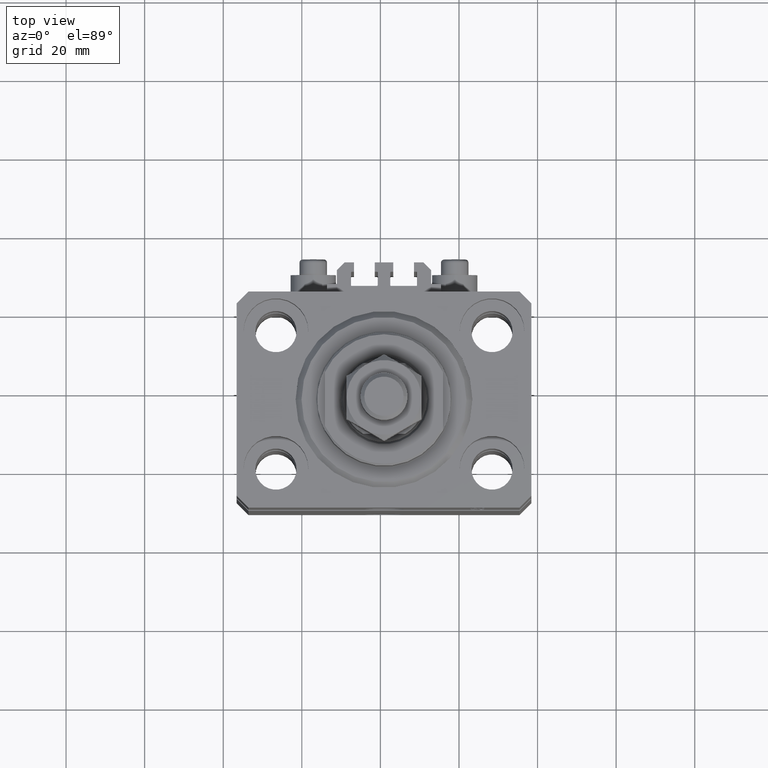
[diagram: clean part render]
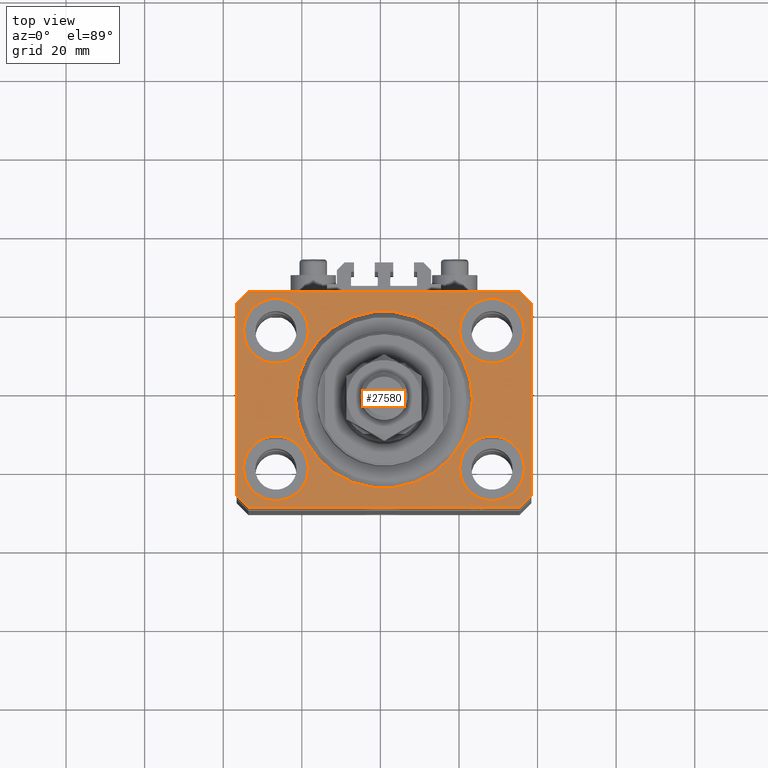
[diagram: same view with one face highlighted and labeled with its STEP entity id]
A machine part, top view. The second image highlights one B-rep face of the part: STEP entity #27580.
In plain terms, the highlighted planar face has unit normal (0, 0, 1).
Its self-contained STEP definition (entity closure, byte-faithful):
#201 = ORIENTED_EDGE ( 'NONE', *, *, #4937, .F. ) ;
#773 = DIRECTION ( 'NONE',  ( -1.000000000000000000, 0.000000000000000000, 0.000000000000000000 ) ) ;
#841 = DIRECTION ( 'NONE',  ( 0.000000000000000000, 0.000000000000000000, 1.000000000000000000 ) ) ;
#895 = DIRECTION ( 'NONE',  ( 1.000000000000000000, 0.000000000000000000, 0.000000000000000000 ) ) ;
#1076 = FACE_BOUND ( 'NONE', #31530, .T. ) ;
#1424 = VERTEX_POINT ( 'NONE', #47582 ) ;
#1511 = DIRECTION ( 'NONE',  ( 1.076236605503979380E-14, 1.000000000000000000, 0.000000000000000000 ) ) ;
#2161 = ORIENTED_EDGE ( 'NONE', *, *, #43534, .F. ) ;
#2322 = CARTESIAN_POINT ( 'NONE',  ( 27.49999999999999645, 17.50000000000001066, 0.000000000000000000 ) ) ;
#2441 = ORIENTED_EDGE ( 'NONE', *, *, #48425, .T. ) ;
#2782 = CIRCLE ( 'NONE', #3561, 8.250000000000000000 ) ;
#3008 = LINE ( 'NONE', #47786, #14439 ) ;
#3285 = CIRCLE ( 'NONE', #16562, 8.250000000000000000 ) ;
#3461 = LINE ( 'NONE', #45044, #37243 ) ;
#3561 = AXIS2_PLACEMENT_3D ( 'NONE', #36481, #32812, #47748 ) ;
#3619 = DIRECTION ( 'NONE',  ( 0.000000000000000000, 0.000000000000000000, 1.000000000000000000 ) ) ;
#4036 = PLANE ( 'NONE',  #18367 ) ;
#4276 = CARTESIAN_POINT ( 'NONE',  ( -22.50000000000000355, 2.755455298081544383E-15, 0.000000000000000000 ) ) ;
#4420 = VECTOR ( 'NONE', #28279, 1000.000000000000000 ) ;
#4747 = CARTESIAN_POINT ( 'NONE',  ( 0.000000000000000000, 0.000000000000000000, 0.000000000000000000 ) ) ;
#4937 = EDGE_CURVE ( 'NONE', #7800, #23232, #17870, .T. ) ;
#6937 = CARTESIAN_POINT ( 'NONE',  ( -19.25000000000000355, -17.50000000000000000, 0.000000000000000000 ) ) ;
#6980 = AXIS2_PLACEMENT_3D ( 'NONE', #9183, #16756, #46612 ) ;
#7504 = VERTEX_POINT ( 'NONE', #13403 ) ;
#7708 = FACE_BOUND ( 'NONE', #43028, .T. ) ;
#7800 = VERTEX_POINT ( 'NONE', #47671 ) ;
#9183 = CARTESIAN_POINT ( 'NONE',  ( 27.50000000000000355, -17.50000000000000000, 0.000000000000000000 ) ) ;
#10333 = VERTEX_POINT ( 'NONE', #31793 ) ;
#10754 = VECTOR ( 'NONE', #13108, 1000.000000000000114 ) ;
#10959 = VERTEX_POINT ( 'NONE', #25623 ) ;
#11092 = CARTESIAN_POINT ( 'NONE',  ( 0.000000000000000000, 0.000000000000000000, 0.000000000000000000 ) ) ;
#11339 = CIRCLE ( 'NONE', #30074, 22.50000000000000355 ) ;
#11451 = CARTESIAN_POINT ( 'NONE',  ( -27.50000000000000355, 17.50000000000000000, 0.000000000000000000 ) ) ;
#11533 = EDGE_CURVE ( 'NONE', #15267, #35335, #42334, .T. ) ;
#11651 = DIRECTION ( 'NONE',  ( 0.7071067811865474617, 0.7071067811865474617, 0.000000000000000000 ) ) ;
#12335 = VERTEX_POINT ( 'NONE', #43123 ) ;
#13108 = DIRECTION ( 'NONE',  ( -0.7071067811865356934, 0.7071067811865594521, 0.000000000000000000 ) ) ;
#13352 = ORIENTED_EDGE ( 'NONE', *, *, #18361, .T. ) ;
#13403 = CARTESIAN_POINT ( 'NONE',  ( 34.49999999999999289, -27.49999999999999645, 0.000000000000000000 ) ) ;
#13563 = ORIENTED_EDGE ( 'NONE', *, *, #30402, .T. ) ;
#13671 = CARTESIAN_POINT ( 'NONE',  ( -34.49999999999998579, -27.49999999999999645, 0.000000000000000000 ) ) ;
#13741 = EDGE_CURVE ( 'NONE', #32071, #44865, #30078, .T. ) ;
#14439 = VECTOR ( 'NONE', #773, 1000.000000000000000 ) ;
#14991 = DIRECTION ( 'NONE',  ( 1.000000000000000000, 0.000000000000000000, 0.000000000000000000 ) ) ;
#15267 = VERTEX_POINT ( 'NONE', #4276 ) ;
#15428 = VERTEX_POINT ( 'NONE', #6937 ) ;
#16006 = DIRECTION ( 'NONE',  ( 1.000000000000000000, 0.000000000000000000, -0.000000000000000000 ) ) ;
#16506 = ORIENTED_EDGE ( 'NONE', *, *, #43477, .T. ) ;
#16562 = AXIS2_PLACEMENT_3D ( 'NONE', #11451, #3619, #895 ) ;
#16756 = DIRECTION ( 'NONE',  ( 0.000000000000000000, 0.000000000000000000, 1.000000000000000000 ) ) ;
#17089 = AXIS2_PLACEMENT_3D ( 'NONE', #31922, #32166, #17488 ) ;
#17469 = EDGE_CURVE ( 'NONE', #17893, #1424, #3285, .T. ) ;
#17488 = DIRECTION ( 'NONE',  ( 1.000000000000000000, 0.000000000000000000, 0.000000000000000000 ) ) ;
#17870 = CIRCLE ( 'NONE', #6980, 8.250000000000000000 ) ;
#17893 = VERTEX_POINT ( 'NONE', #47795 ) ;
#18361 = EDGE_CURVE ( 'NONE', #12335, #32071, #42711, .T. ) ;
#18367 = AXIS2_PLACEMENT_3D ( 'NONE', #4747, #841, #16006 ) ;
#18386 = DIRECTION ( 'NONE',  ( -0.7071067811865471286, -0.7071067811865479058, 0.000000000000000000 ) ) ;
#18524 = CIRCLE ( 'NONE', #23192, 8.250000000000000000 ) ;
#18647 = VECTOR ( 'NONE', #11651, 1000.000000000000114 ) ;
#19131 = DIRECTION ( 'NONE',  ( 0.000000000000000000, 0.000000000000000000, 1.000000000000000000 ) ) ;
#19675 = FACE_BOUND ( 'NONE', #46144, .T. ) ;
#19933 = AXIS2_PLACEMENT_3D ( 'NONE', #2322, #43671, #32164 ) ;
#20445 = AXIS2_PLACEMENT_3D ( 'NONE', #45482, #26880, #30788 ) ;
#20668 = CIRCLE ( 'NONE', #48020, 8.249999999999992895 ) ;
#21692 = CARTESIAN_POINT ( 'NONE',  ( 37.50000000000051870, 24.49999999999995381, 0.000000000000000000 ) ) ;
#22554 = CIRCLE ( 'NONE', #17089, 8.250000000000000000 ) ;
#22649 = LINE ( 'NONE', #44919, #18647 ) ;
#23192 = AXIS2_PLACEMENT_3D ( 'NONE', #45901, #42225, #37830 ) ;
#23213 = DIRECTION ( 'NONE',  ( 0.7071067811865483499, -0.7071067811865466846, 0.000000000000000000 ) ) ;
#23232 = VERTEX_POINT ( 'NONE', #39842 ) ;
#23444 = EDGE_LOOP ( 'NONE', ( #44722, #25379 ) ) ;
#23461 = CARTESIAN_POINT ( 'NONE',  ( 37.49999999999999289, -24.50000000000000000, 0.000000000000000000 ) ) ;
#24551 = EDGE_CURVE ( 'NONE', #34177, #30865, #45592, .T. ) ;
#25121 = EDGE_LOOP ( 'NONE', ( #16506, #40237, #13352, #29889, #26247, #41122, #13563, #2441 ) ) ;
#25379 = ORIENTED_EDGE ( 'NONE', *, *, #17469, .F. ) ;
#25623 = CARTESIAN_POINT ( 'NONE',  ( -34.49999999999999289, 27.50000000000000000, 0.000000000000000000 ) ) ;
#26247 = ORIENTED_EDGE ( 'NONE', *, *, #30932, .T. ) ;
#26298 = FACE_OUTER_BOUND ( 'NONE', #25121, .T. ) ;
#26880 = DIRECTION ( 'NONE',  ( 0.000000000000000000, 0.000000000000000000, 1.000000000000000000 ) ) ;
#26900 = EDGE_CURVE ( 'NONE', #30865, #34177, #20668, .T. ) ;
#27580 = ADVANCED_FACE ( 'NONE', ( #19675, #41930, #1076, #38254, #7708, #26298 ), #4036, .T. ) ;
#27795 = VECTOR ( 'NONE', #1511, 1000.000000000000000 ) ;
#27917 = DIRECTION ( 'NONE',  ( 1.000000000000000000, 0.000000000000000000, 0.000000000000000000 ) ) ;
#28200 = DIRECTION ( 'NONE',  ( 1.000000000000000000, 0.000000000000000000, 0.000000000000000000 ) ) ;
#28279 = DIRECTION ( 'NONE',  ( 1.000000000000000000, 0.000000000000000000, 0.000000000000000000 ) ) ;
#28748 = EDGE_CURVE ( 'NONE', #15428, #10333, #41048, .T. ) ;
#28859 = EDGE_CURVE ( 'NONE', #1424, #17893, #2782, .T. ) ;
#29716 = ORIENTED_EDGE ( 'NONE', *, *, #35759, .F. ) ;
#29889 = ORIENTED_EDGE ( 'NONE', *, *, #13741, .T. ) ;
#30074 = AXIS2_PLACEMENT_3D ( 'NONE', #11092, #19131, #14991 ) ;
#30078 = LINE ( 'NONE', #30560, #38323 ) ;
#30250 = EDGE_LOOP ( 'NONE', ( #201, #29716 ) ) ;
#30402 = EDGE_CURVE ( 'NONE', #33084, #46301, #38683, .T. ) ;
#30560 = CARTESIAN_POINT ( 'NONE',  ( -37.49999999999999289, -24.50000000000000000, 0.000000000000000000 ) ) ;
#30788 = DIRECTION ( 'NONE',  ( 1.000000000000000000, 0.000000000000000000, 0.000000000000000000 ) ) ;
#30865 = VERTEX_POINT ( 'NONE', #38149 ) ;
#30932 = EDGE_CURVE ( 'NONE', #44865, #7504, #46890, .T. ) ;
#31530 = EDGE_LOOP ( 'NONE', ( #38028, #44621 ) ) ;
#31542 = EDGE_CURVE ( 'NONE', #10959, #12335, #3461, .T. ) ;
#31793 = CARTESIAN_POINT ( 'NONE',  ( -35.75000000000000711, -17.50000000000000000, 0.000000000000000000 ) ) ;
#31837 = CARTESIAN_POINT ( 'NONE',  ( -27.50000000000000355, -17.50000000000000000, 0.000000000000000000 ) ) ;
#31868 = CARTESIAN_POINT ( 'NONE',  ( 27.49999999999999645, 17.50000000000001066, 0.000000000000000000 ) ) ;
#31922 = CARTESIAN_POINT ( 'NONE',  ( 27.50000000000000355, -17.50000000000000000, 0.000000000000000000 ) ) ;
#31936 = LINE ( 'NONE', #39016, #10754 ) ;
#32071 = VERTEX_POINT ( 'NONE', #42695 ) ;
#32164 = DIRECTION ( 'NONE',  ( 1.000000000000000000, 0.000000000000000000, 0.000000000000000000 ) ) ;
#32166 = DIRECTION ( 'NONE',  ( 0.000000000000000000, 0.000000000000000000, 1.000000000000000000 ) ) ;
#32812 = DIRECTION ( 'NONE',  ( 0.000000000000000000, 0.000000000000000000, 1.000000000000000000 ) ) ;
#32996 = ORIENTED_EDGE ( 'NONE', *, *, #11533, .F. ) ;
#33084 = VERTEX_POINT ( 'NONE', #23461 ) ;
#34177 = VERTEX_POINT ( 'NONE', #37141 ) ;
#34574 = DIRECTION ( 'NONE',  ( 0.000000000000000000, 0.000000000000000000, 1.000000000000000000 ) ) ;
#34615 = EDGE_CURVE ( 'NONE', #7504, #33084, #22649, .T. ) ;
#34649 = CARTESIAN_POINT ( 'NONE',  ( -37.49999999999999289, 24.50000000000000000, 0.000000000000000000 ) ) ;
#35335 = VERTEX_POINT ( 'NONE', #41785 ) ;
#35759 = EDGE_CURVE ( 'NONE', #23232, #7800, #22554, .T. ) ;
#36370 = AXIS2_PLACEMENT_3D ( 'NONE', #31837, #39404, #27917 ) ;
#36481 = CARTESIAN_POINT ( 'NONE',  ( -27.50000000000000355, 17.50000000000000000, 0.000000000000000000 ) ) ;
#37141 = CARTESIAN_POINT ( 'NONE',  ( 19.25000000000000000, 17.50000000000001066, 0.000000000000000000 ) ) ;
#37243 = VECTOR ( 'NONE', #18386, 1000.000000000000000 ) ;
#37830 = DIRECTION ( 'NONE',  ( 1.000000000000000000, 0.000000000000000000, 0.000000000000000000 ) ) ;
#38028 = ORIENTED_EDGE ( 'NONE', *, *, #26900, .F. ) ;
#38149 = CARTESIAN_POINT ( 'NONE',  ( 35.74999999999999289, 17.50000000000001066, 0.000000000000000000 ) ) ;
#38254 = FACE_BOUND ( 'NONE', #23444, .T. ) ;
#38323 = VECTOR ( 'NONE', #23213, 1000.000000000000000 ) ;
#38442 = CARTESIAN_POINT ( 'NONE',  ( 37.49999999999999289, -24.50000000000000000, 0.000000000000000000 ) ) ;
#38683 = LINE ( 'NONE', #38442, #27795 ) ;
#39016 = CARTESIAN_POINT ( 'NONE',  ( 37.50000000000051870, 24.49999999999995381, 0.000000000000000000 ) ) ;
#39404 = DIRECTION ( 'NONE',  ( 0.000000000000000000, 0.000000000000000000, 1.000000000000000000 ) ) ;
#39510 = DIRECTION ( 'NONE',  ( 0.000000000000000000, -1.000000000000000000, 0.000000000000000000 ) ) ;
#39827 = VERTEX_POINT ( 'NONE', #46362 ) ;
#39842 = CARTESIAN_POINT ( 'NONE',  ( 19.25000000000000000, -17.50000000000000000, 0.000000000000000000 ) ) ;
#40237 = ORIENTED_EDGE ( 'NONE', *, *, #31542, .T. ) ;
#41048 = CIRCLE ( 'NONE', #36370, 8.250000000000000000 ) ;
#41068 = ORIENTED_EDGE ( 'NONE', *, *, #48375, .F. ) ;
#41122 = ORIENTED_EDGE ( 'NONE', *, *, #34615, .T. ) ;
#41785 = CARTESIAN_POINT ( 'NONE',  ( 22.50000000000000355, 0.000000000000000000, 0.000000000000000000 ) ) ;
#41930 = FACE_BOUND ( 'NONE', #30250, .T. ) ;
#42225 = DIRECTION ( 'NONE',  ( 0.000000000000000000, 0.000000000000000000, 1.000000000000000000 ) ) ;
#42334 = CIRCLE ( 'NONE', #20445, 22.50000000000000355 ) ;
#42695 = CARTESIAN_POINT ( 'NONE',  ( -37.49999999999999289, -24.50000000000000000, 0.000000000000000000 ) ) ;
#42711 = LINE ( 'NONE', #34649, #47893 ) ;
#43028 = EDGE_LOOP ( 'NONE', ( #2161, #32996 ) ) ;
#43123 = CARTESIAN_POINT ( 'NONE',  ( -37.49999999999999289, 24.50000000000000000, 0.000000000000000000 ) ) ;
#43205 = CARTESIAN_POINT ( 'NONE',  ( -34.49999999999998579, -27.49999999999999645, 0.000000000000000000 ) ) ;
#43477 = EDGE_CURVE ( 'NONE', #39827, #10959, #3008, .T. ) ;
#43534 = EDGE_CURVE ( 'NONE', #35335, #15267, #11339, .T. ) ;
#43671 = DIRECTION ( 'NONE',  ( 0.000000000000000000, 0.000000000000000000, 1.000000000000000000 ) ) ;
#44621 = ORIENTED_EDGE ( 'NONE', *, *, #24551, .F. ) ;
#44722 = ORIENTED_EDGE ( 'NONE', *, *, #28859, .F. ) ;
#44865 = VERTEX_POINT ( 'NONE', #13671 ) ;
#44919 = CARTESIAN_POINT ( 'NONE',  ( 34.49999999999999289, -27.49999999999999645, 0.000000000000000000 ) ) ;
#45044 = CARTESIAN_POINT ( 'NONE',  ( -34.49999999999999289, 27.50000000000000000, 0.000000000000000000 ) ) ;
#45482 = CARTESIAN_POINT ( 'NONE',  ( 0.000000000000000000, 0.000000000000000000, 0.000000000000000000 ) ) ;
#45592 = CIRCLE ( 'NONE', #19933, 8.249999999999992895 ) ;
#45901 = CARTESIAN_POINT ( 'NONE',  ( -27.50000000000000355, -17.50000000000000000, 0.000000000000000000 ) ) ;
#46144 = EDGE_LOOP ( 'NONE', ( #47354, #41068 ) ) ;
#46301 = VERTEX_POINT ( 'NONE', #21692 ) ;
#46362 = CARTESIAN_POINT ( 'NONE',  ( 34.50000000000056843, 27.50000000000000000, 0.000000000000000000 ) ) ;
#46612 = DIRECTION ( 'NONE',  ( 1.000000000000000000, 0.000000000000000000, 0.000000000000000000 ) ) ;
#46890 = LINE ( 'NONE', #43205, #4420 ) ;
#47354 = ORIENTED_EDGE ( 'NONE', *, *, #28748, .F. ) ;
#47582 = CARTESIAN_POINT ( 'NONE',  ( -19.25000000000000355, 17.50000000000000000, 0.000000000000000000 ) ) ;
#47671 = CARTESIAN_POINT ( 'NONE',  ( 35.75000000000000711, -17.50000000000000000, 0.000000000000000000 ) ) ;
#47748 = DIRECTION ( 'NONE',  ( 1.000000000000000000, 0.000000000000000000, 0.000000000000000000 ) ) ;
#47786 = CARTESIAN_POINT ( 'NONE',  ( 34.50000000000056843, 27.50000000000000000, 0.000000000000000000 ) ) ;
#47795 = CARTESIAN_POINT ( 'NONE',  ( -35.75000000000000711, 17.50000000000000000, 0.000000000000000000 ) ) ;
#47893 = VECTOR ( 'NONE', #39510, 1000.000000000000000 ) ;
#48020 = AXIS2_PLACEMENT_3D ( 'NONE', #31868, #34574, #28200 ) ;
#48375 = EDGE_CURVE ( 'NONE', #10333, #15428, #18524, .T. ) ;
#48425 = EDGE_CURVE ( 'NONE', #46301, #39827, #31936, .T. ) ;